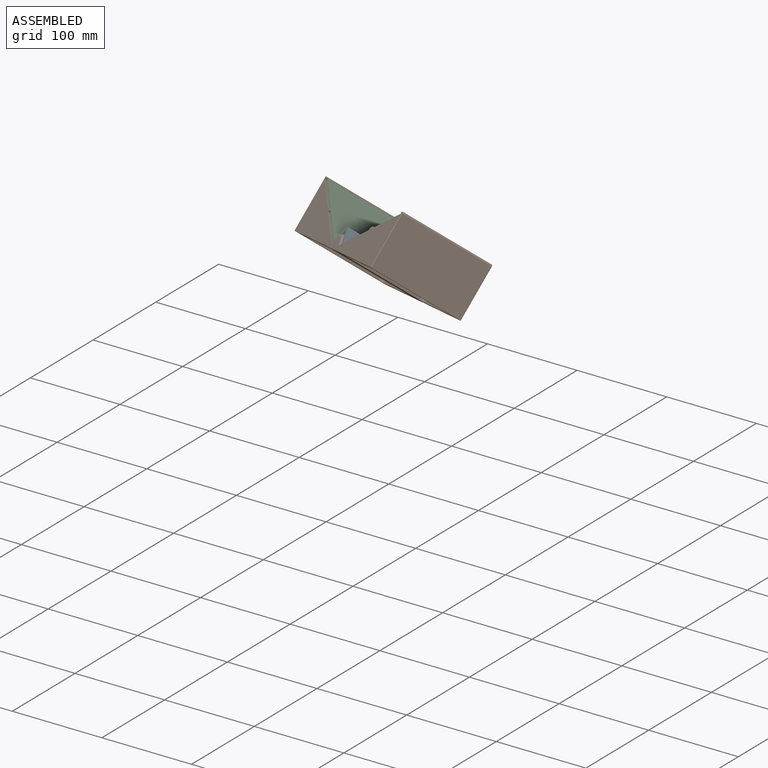
[diagram: assembled view]
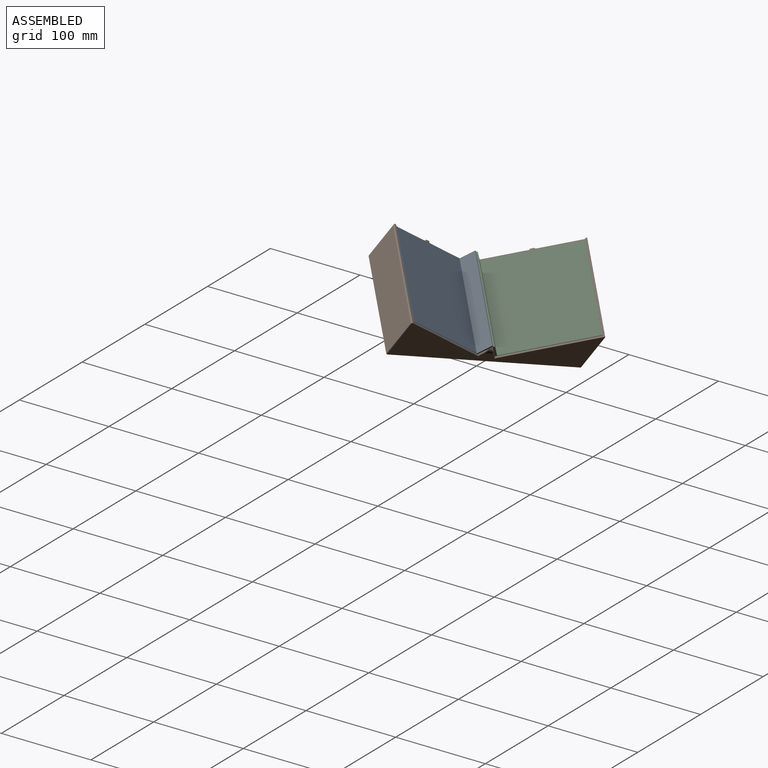
[diagram: assembled view, second angle]
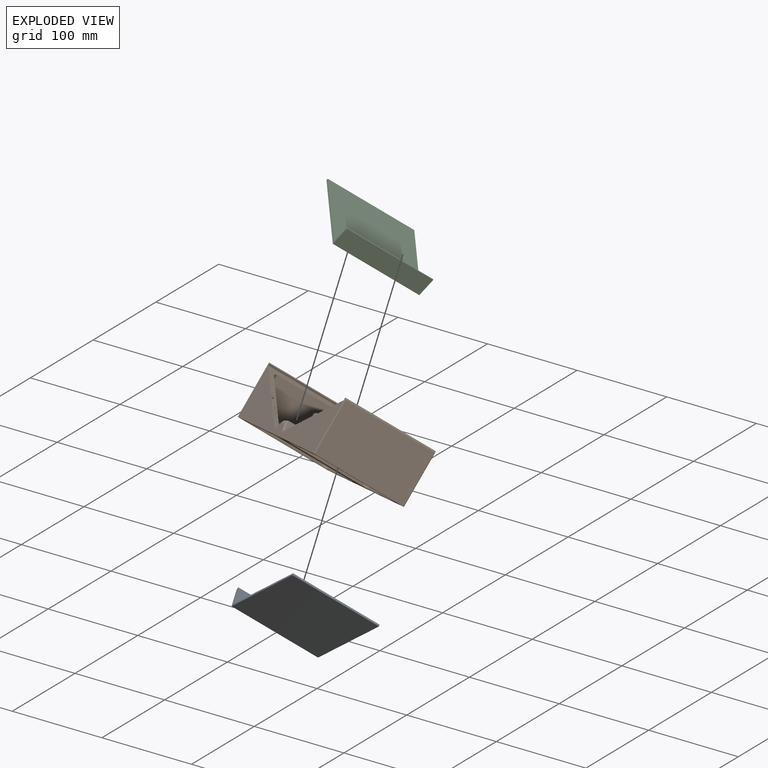
[diagram: exploded view]
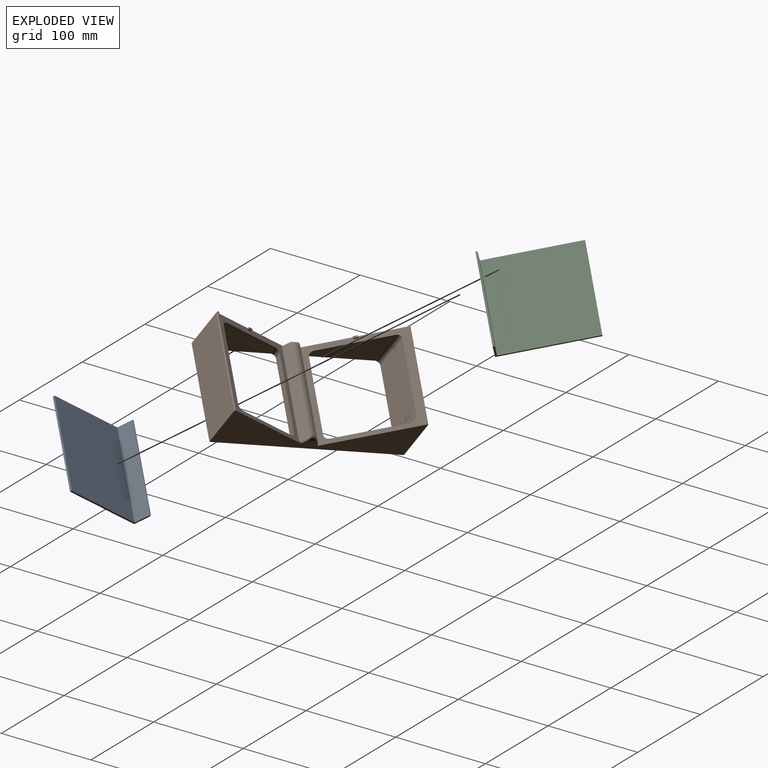
[diagram: exploded view, second angle]
ASSEMBLY  parts=3 mates=6
PART A: 10 faces, bbox 100x100x20 mm
  f0: plane 100x100mm, normal (0,0,-1), area 10000mm2, adj f1,f7,f8,f9
  f1: plane 100x2mm, normal (1,0,0), area 200mm2, adj f0,f2,f8,f9
  f2: plane 100x98mm, normal (0,0,1), area 9800mm2, adj f1,f3,f8,f9
  f3: plane 100x18mm, normal (1,0,0), area 1800mm2, adj f2,f4,f8,f9
  f4: plane 100x1mm, normal (0,0,1), area 100mm2, adj f3,f5,f8,f9
  f5: plane 100x1.5mm, normal (-1,0,0), area 150mm2, adj f4,f6,f8,f9
  f6: plane 100x1mm, normal (0,0,1), area 100mm2, adj f5,f7,f8,f9
  f7: plane 100x18.5mm, normal (-1,0,0), area 1850mm2, adj f0,f6,f8,f9
  f8: plane 100x20mm, normal (0,-1,0), area 234.5mm2, adj f0,f1,f2,f3,f4,f5,f6,f7
  f9: plane 100x20mm, normal (0,1,0), area 234.5mm2, adj f0,f1,f2,f3,f4,f5,f6,f7
PART B: 219 faces, bbox 196.8x58.7x104.3 mm
  f0: plane 102.3x89.03mm, normal (0.5,0.87,0), area 2231.9mm2, adj f3,f8,f10,f11,f13,f14,f15,f29
  f1: plane 102.3x89.03mm, normal (-0.5,0.87,0), area 2239.3mm2, adj f3,f6,f18,f19,f21,f22,f23,f25
  f2: plane 196.82x104.3mm, normal (0,-1,0), area 6649.7mm2, adj f3,f4,f5,f7,f25,f26,f27,f28
  f3: plane 194.82x58.75mm, normal (0,0,1), area 5533.6mm2, adj f0,f1,f2,f12,f16,f20,f24,f35
  f4: plane 102.3x55.65mm, normal (-1,0,0), area 5693mm2, adj f2,f9,f34,f36
  f5: plane 102.3x57.02mm, normal (1,0,0), area 5832.7mm2, adj f2,f17,f33,f35
  f6: plane 100.3x8.82mm, normal (0.87,0.5,0), area 1021.1mm2, adj f1,f18,f53,f58,f59,f61,f62
  f7: plane 194.82x58.75mm, normal (0,0,-1), area 5928.8mm2, adj f2,f12,f20,f33,f34,f55,f61,f67
  f8: plane 100.3x10.19mm, normal (-0.87,0.5,0), area 1179.3mm2, adj f0,f11,f53,f64,f65,f67,f68
  f9: plane 104.3x1.73mm, normal (-0.87,0.5,0), area 207.7mm2, adj f4,f12,f34,f36
  f10: plane 101.8x1.73mm, normal (0.87,-0.5,0), area 203.6mm2, adj f0,f11,f12,f57
  f11: plane 87.86x51.88mm, normal (0,0,1), area 200.6mm2, adj f0,f8,f10,f12
  f12: plane 104.3x90.33mm, normal (0.5,0.87,0), area 410mm2, adj f3,f7,f9,f10,f11,f57,f67
  f13: plane 4.46x3.73mm, normal (0,0,-1), area 8mm2, adj f0,f16,f49,f52
  f14: plane 1.73x1mm, normal (-0.87,0.5,0), area 2mm2, adj f0,f16,f49,f50
  f15: plane 1.73x1mm, normal (0.87,-0.5,0), area 2mm2, adj f0,f16,f51,f52
  f16: plane 4.33x2.5mm, normal (0.5,0.87,0), area 9.8mm2, adj f3,f13,f14,f15,f49,f50,f51,f52
  f17: plane 104.3x1.73mm, normal (0.87,0.5,0), area 207.7mm2, adj f5,f20,f33,f35
  f18: plane 87.86x51.88mm, normal (0,0,1), area 200.6mm2, adj f1,f6,f19,f20
  f19: plane 101.8x1.73mm, normal (-0.87,-0.5,0), area 203.6mm2, adj f1,f18,f20,f56
  f20: plane 104.3x90.33mm, normal (-0.5,0.87,0), area 410mm2, adj f3,f7,f17,f18,f19,f56,f61
  f21: plane 4.46x3.73mm, normal (0,0,-1), area 8mm2, adj f1,f24,f45,f48
  f22: plane 1.73x1mm, normal (-0.87,-0.5,0), area 2mm2, adj f1,f24,f45,f46
  f23: plane 1.73x1mm, normal (0.87,0.5,0), area 2mm2, adj f1,f24,f47,f48
  f24: plane 4.33x2.5mm, normal (-0.5,0.87,0), area 9.8mm2, adj f3,f21,f22,f23,f45,f46,f47,f48
  f25: plane 82.3x52.4mm, normal (-1,0,0), area 4312.3mm2, adj f1,f2,f37,f40
  f26: plane 65.41x49.51mm, normal (0,0,-1), area 2003.4mm2, adj f1,f2,f37,f38
  f27: plane 82.3x8.86mm, normal (1,0,0), area 729mm2, adj f1,f2,f38,f39
  f28: plane 65.41x49.51mm, normal (0,0,1), area 2003.4mm2, adj f1,f2,f39,f40
  f29: plane 65.41x48.14mm, normal (0,0,-1), area 1914.1mm2, adj f0,f2,f41,f44
  f30: plane 82.3x51.03mm, normal (1,0,0), area 4199.9mm2, adj f0,f2,f43,f44
  f31: plane 65.41x48.14mm, normal (0,0,1), area 1914.1mm2, adj f0,f2,f42,f43
  f32: plane 82.3x7.49mm, normal (-1,0,0), area 616.6mm2, adj f0,f2,f41,f42
  f33: cylinder r=1mm len=58.75mm, axis (0,1,0), area 90.5mm2, adj f2,f5,f7,f17
  f34: cylinder r=1mm len=57.38mm, axis (0,-1,0), area 88.4mm2, adj f2,f4,f7,f9
  f35: cylinder r=1mm len=58.75mm, axis (0,-1,0), area 90.5mm2, adj f2,f3,f5,f17
  f36: cylinder r=1mm len=57.38mm, axis (0,1,0), area 88.4mm2, adj f2,f3,f4,f9
  f37: cylinder r=5mm len=52.4mm, axis (0,-1,0), area 403.3mm2, adj f1,f2,f25,f26
  f38: cylinder r=5mm len=11.75mm, axis (0,1,0), area 77.8mm2, adj f1,f2,f26,f27
  f39: cylinder r=5mm len=11.75mm, axis (0,-1,0), area 77.8mm2, adj f1,f2,f27,f28
  f40: cylinder r=5mm len=52.4mm, axis (0,1,0), area 403.3mm2, adj f1,f2,f25,f28
  f41: cylinder r=5mm len=10.38mm, axis (0,1,0), area 67.1mm2, adj f0,f2,f29,f32
  f42: cylinder r=5mm len=10.38mm, axis (0,-1,0), area 67.1mm2, adj f0,f2,f31,f32
  f43: cylinder r=5mm len=51.03mm, axis (0,1,0), area 392.6mm2, adj f0,f2,f30,f31
  f44: cylinder r=5mm len=51.03mm, axis (0,-1,0), area 392.6mm2, adj f0,f2,f29,f30
  f45: cylinder r=0.5mm len=1.98mm, axis (-0.5,0.87,0), area 1.6mm2, adj f1,f21,f22,f24
  f46: cylinder r=0.5mm len=1.98mm, axis (-0.5,0.87,0), area 1.6mm2, adj f1,f3,f22,f24
  f47: cylinder r=0.5mm len=1.98mm, axis (0.5,-0.87,0), area 1.6mm2, adj f1,f3,f23,f24
  f48: cylinder r=0.5mm len=1.98mm, axis (0.5,-0.87,0), area 1.6mm2, adj f1,f21,f23,f24
  f49: cylinder r=0.5mm len=1.98mm, axis (0.5,0.87,0), area 1.6mm2, adj f0,f13,f14,f16
  f50: cylinder r=0.5mm len=1.98mm, axis (0.5,0.87,0), area 1.6mm2, adj f0,f3,f14,f16
  f51: cylinder r=0.5mm len=1.98mm, axis (-0.5,-0.87,0), area 1.6mm2, adj f0,f3,f15,f16
  f52: cylinder r=0.5mm len=1.98mm, axis (-0.5,-0.87,0), area 1.6mm2, adj f0,f13,f15,f16
  f53: cylinder r=5mm len=99.5mm, axis (0,0,-1), area 1017.5mm2, adj f6,f8,f60,f63,f66,f69
  f54: cylinder r=5mm len=6.93mm, axis (1,0,0), area 30.9mm2, adj f3,f59,f60,f65,f66
  f55: cylinder r=5mm len=6.93mm, axis (-1,0,0), area 30.9mm2, adj f7,f62,f63,f68,f69
  f56: cylinder r=0.5mm len=1.98mm, axis (-0.5,0.87,0), area 1.6mm2, adj f1,f3,f19,f20
  f57: cylinder r=0.5mm len=1.98mm, axis (0.5,0.87,0), area 1.6mm2, adj f0,f3,f10,f12
  f58: cylinder r=2mm len=8.32mm, axis (0.5,-0.87,0), area 26.6mm2, adj f1,f3,f6,f59
  f59: bspline ~2.75x2.6mm, area 6.8mm2, adj f6,f54,f58,f60
  f60: bspline ~4.49x4.49mm, area 8.1mm2, adj f53,f54,f59
  f61: cylinder r=2mm len=6.59mm, axis (-0.5,0.87,0), area 20.3mm2, adj f6,f7,f20,f62
  f62: bspline ~2.75x2.6mm, area 6.8mm2, adj f6,f55,f61,f63
  f63: bspline ~4.49x4.49mm, area 8.1mm2, adj f53,f55,f62
  f64: cylinder r=2mm len=9.69mm, axis (-0.5,-0.87,0), area 31.5mm2, adj f0,f3,f8,f65
  f65: bspline ~2.75x2.6mm, area 6.8mm2, adj f8,f54,f64,f66
  f66: bspline ~4.49x4.49mm, area 8.1mm2, adj f53,f54,f65
  f67: cylinder r=2mm len=7.95mm, axis (-0.5,-0.87,0), area 25.2mm2, adj f7,f8,f12,f68
  f68: bspline ~2.75x2.6mm, area 6.8mm2, adj f8,f55,f67,f69
  f69: bspline ~4.49x4.49mm, area 8.1mm2, adj f53,f55,f68
  f70: plane 1.83x0.69mm, normal (0.81,-0.47,0.35), area 0.4mm2, adj f0,f71,f73,f74
  f71: plane 0.28x0.28mm, normal (0,0,-1), area 0mm2, adj f0,f70,f72,f74
  f72: plane 1.83x0.69mm, normal (-0.81,0.47,-0.35), area 0.4mm2, adj f0,f71,f73,f74
  f73: plane 0.28x0.28mm, normal (0,0,1), area 0mm2, adj f0,f70,f72,f74
  f74: plane 1.83x0.77mm, normal (0.5,0.87,0), area 0.4mm2, adj f70,f71,f72,f73
  f75: plane 1.14x0.77mm, normal (0,0,1), area 0.2mm2, adj f0,f76,f94,f95
  f76: plane 0.19x0.17mm, normal (0.87,-0.5,0), area 0mm2, adj f0,f75,f77,f95
  f77: plane 0.92x0.64mm, normal (0,0,-1), area 0.2mm2, adj f0,f76,f78,f95
  f78: plane 0.17x0.1mm, normal (0.87,-0.5,0), area 0mm2, adj f0,f77,f79,f95
  f79: plane 0.45x0.39mm, normal (0.61,-0.35,0.71), area 0.1mm2, adj f0,f78,f80,f95
  f80: extruded ~0.43x0.42mm, area 0.1mm2, adj f0,f79,f81,f95
  f81: extruded ~0.34x0.22mm, area 0.1mm2, adj f0,f80,f82,f95
  f82: extruded ~0.35x0.25mm, area 0.1mm2, adj f0,f81,f83,f95
  f83: extruded ~0.45x0.38mm, area 0.1mm2, adj f0,f82,f84,f95
  f84: extruded ~0.58x0.45mm, area 0.1mm2, adj f0,f83,f85,f95
  f85: plane 0.23x0.2mm, normal (-0.68,0.39,0.61), area 0mm2, adj f0,f84,f86,f95
  f86: extruded ~0.3x0.29mm, area 0.1mm2, adj f0,f85,f87,f95
  f87: extruded ~0.29x0.28mm, area 0mm2, adj f0,f86,f88,f95
  f88: extruded ~0.31x0.3mm, area 0.1mm2, adj f0,f87,f89,f95
  f89: extruded ~0.23x0.22mm, area 0.1mm2, adj f0,f88,f90,f95
  f90: extruded ~0.19x0.19mm, area 0mm2, adj f0,f89,f91,f95
  f91: extruded ~0.23x0.19mm, area 0mm2, adj f0,f90,f92,f95
  f92: extruded ~0.35x0.32mm, area 0.1mm2, adj f0,f91,f93,f95
  f93: plane 0.52x0.48mm, normal (-0.61,0.35,-0.71), area 0.1mm2, adj f0,f92,f94,f95
  f94: plane 0.18x0.17mm, normal (-0.87,0.5,0), area 0mm2, adj f0,f75,f93,f95
  f95: plane 1.86x1.04mm, normal (0.5,0.87,0), area 0.7mm2, adj f75,f76,f77,f78,f79,f80,f81,f82
  f96: plane 0.28x0.27mm, normal (0,0,1), area 0mm2, adj f0,f97,f104,f105
  f97: plane 1.83x0.17mm, normal (0.87,-0.5,0), area 0.4mm2, adj f0,f96,f98,f105
  f98: plane 0.26x0.25mm, normal (0,0,-1), area 0mm2, adj f0,f97,f99,f105
  f99: plane 0.52x0.42mm, normal (-0.53,0.31,-0.79), area 0.1mm2, adj f0,f98,f100,f105
  f100: plane 0.23x0.2mm, normal (-0.69,0.4,0.61), area 0mm2, adj f0,f99,f101,f105
  f101: extruded ~0.36x0.32mm, area 0.1mm2, adj f0,f100,f102,f105
  f102: extruded ~0.2x0.15mm, area 0mm2, adj f0,f101,f103,f105
  f103: extruded ~0.31x0.18mm, area 0.1mm2, adj f0,f102,f104,f105
  f104: plane 1.3x0.17mm, normal (-0.87,0.5,0), area 0.3mm2, adj f0,f96,f103,f105
  f105: plane 1.83x0.57mm, normal (0.5,0.87,0), area 0.5mm2, adj f96,f97,f98,f99,f100,f101,f102,f103
  f106: plane 0.89x0.17mm, normal (-0.87,0.5,0), area 0.2mm2, adj f0,f107,f133,f134
  f107: plane 0.28x0.28mm, normal (0,0,1), area 0mm2, adj f0,f106,f108,f134
  f108: plane 0.9x0.17mm, normal (0.87,-0.5,0), area 0.2mm2, adj f0,f107,f109,f134
  f109: extruded ~0.38x0.23mm, area 0.1mm2, adj f0,f108,f110,f134
  f110: extruded ~0.4x0.35mm, area 0.1mm2, adj f0,f109,f111,f134
  f111: extruded ~0.33x0.31mm, area 0.1mm2, adj f0,f110,f112,f134
  f112: extruded ~0.26x0.25mm, area 0mm2, adj f0,f111,f113,f134
  f113: plane 0.18x0.11mm, normal (0,0,-1), area 0mm2, adj f0,f112,f114,f134
  f114: extruded ~0.46x0.38mm, area 0.1mm2, adj f0,f113,f115,f134
  f115: extruded ~0.31x0.29mm, area 0mm2, adj f0,f114,f116,f134
  f116: extruded ~0.26x0.24mm, area 0mm2, adj f0,f115,f117,f134
  f117: plane 0.18x0.11mm, normal (0,0,-1), area 0mm2, adj f0,f116,f118,f134
  f118: plane 0.19x0.19mm, normal (0.85,-0.49,-0.18), area 0mm2, adj f0,f117,f119,f134
  f119: plane 0.26x0.25mm, normal (0,0,-1), area 0mm2, adj f0,f118,f120,f134
  f120: plane 1.37x0.17mm, normal (-0.87,0.5,0), area 0.3mm2, adj f0,f119,f121,f134
  f121: plane 0.28x0.28mm, normal (0,0,1), area 0mm2, adj f0,f120,f122,f134
  f122: plane 0.72x0.17mm, normal (0.87,-0.5,0), area 0.1mm2, adj f0,f121,f123,f134
  f123: extruded ~0.38x0.22mm, area 0.1mm2, adj f0,f122,f124,f134
  f124: extruded ~0.35x0.32mm, area 0.1mm2, adj f0,f123,f125,f134
  f125: extruded ~0.29x0.28mm, area 0mm2, adj f0,f124,f126,f134
  f126: extruded ~0.25x0.21mm, area 0.1mm2, adj f0,f125,f127,f134
  f127: plane 0.89x0.17mm, normal (-0.87,0.5,0), area 0.2mm2, adj f0,f126,f128,f134
  f128: plane 0.28x0.28mm, normal (0,0,1), area 0mm2, adj f0,f127,f129,f134
  f129: plane 0.77x0.17mm, normal (0.87,-0.5,0), area 0.2mm2, adj f0,f128,f130,f134
  f130: extruded ~0.34x0.22mm, area 0.1mm2, adj f0,f129,f131,f134
  f131: extruded ~0.35x0.32mm, area 0.1mm2, adj f0,f130,f132,f134
  f132: extruded ~0.29x0.28mm, area 0mm2, adj f0,f131,f133,f134
  f133: extruded ~0.25x0.21mm, area 0.1mm2, adj f0,f106,f132,f134
  f134: plane 1.69x1.4mm, normal (0.5,0.87,0), area 1.1mm2, adj f106,f107,f108,f109,f110,f111,f112,f113
  f135: extruded ~0.36x0.33mm, area 0.1mm2, adj f136,f159,f160,f217
  f136: extruded ~0.35x0.32mm, area 0.1mm2, adj f135,f137,f160,f217
  f137: extruded ~0.39x0.22mm, area 0.1mm2, adj f136,f138,f160,f217
  f138: extruded ~0.4x0.22mm, area 0.1mm2, adj f137,f139,f160,f217
  f139: extruded ~0.34x0.31mm, area 0.1mm2, adj f138,f140,f160,f217
  f140: extruded ~0.37x0.33mm, area 0.1mm2, adj f139,f141,f160,f217
  f141: extruded ~0.41x0.22mm, area 0.1mm2, adj f140,f142,f160,f217
  f142: plane 0.17x0.1mm, normal (0.87,-0.5,0), area 0mm2, adj f141,f159,f160,f217
  f143: extruded ~0.31x0.3mm, area 0.1mm2, adj f0,f144,f158,f160
  f144: extruded ~0.46x0.38mm, area 0.1mm2, adj f0,f143,f145,f160
  f145: extruded ~0.53x0.25mm, area 0.1mm2, adj f0,f144,f146,f160
  f146: extruded ~0.52x0.25mm, area 0.1mm2, adj f0,f145,f147,f160
  f147: extruded ~0.47x0.38mm, area 0.1mm2, adj f0,f146,f148,f160
  f148: extruded ~0.31x0.3mm, area 0.1mm2, adj f0,f147,f149,f160
  f149: extruded ~0.27x0.26mm, area 0.1mm2, adj f0,f148,f150,f160
  f150: plane 0.18x0.11mm, normal (0,0,-1), area 0mm2, adj f0,f149,f151,f160
  f151: plane 0.19x0.19mm, normal (0.86,-0.49,-0.15), area 0mm2, adj f0,f150,f152,f160
  f152: plane 0.26x0.25mm, normal (0,0,-1), area 0mm2, adj f0,f151,f153,f160
  f153: plane 1.99x0.17mm, normal (-0.87,0.5,0), area 0.4mm2, adj f0,f152,f154,f160
  f154: plane 0.28x0.28mm, normal (0,0,1), area 0mm2, adj f0,f153,f155,f160
  f155: plane 0.57x0.17mm, normal (0.87,-0.5,0), area 0.1mm2, adj f0,f154,f156,f160
  f156: extruded ~0.23x0.18mm, area 0mm2, adj f0,f155,f157,f160
  f157: plane 0.18x0.11mm, normal (0,0,1), area 0mm2, adj f0,f156,f158,f160
  f158: extruded ~0.27x0.26mm, area 0mm2, adj f0,f143,f157,f160
  f159: extruded ~0.37x0.22mm, area 0.1mm2, adj f135,f142,f160,f217
  f160: plane 2.01x1.05mm, normal (0.5,0.87,0), area 0.9mm2, adj f135,f136,f137,f138,f139,f140,f141,f142
  f161: extruded ~0.4x0.23mm, area 0.1mm2, adj f162,f177,f178,f218
  f162: extruded ~0.4x0.23mm, area 0.1mm2, adj f161,f163,f178,f218
  f163: extruded ~0.37x0.33mm, area 0.1mm2, adj f162,f164,f178,f218
  f164: extruded ~0.37x0.33mm, area 0.1mm2, adj f163,f165,f178,f218
  f165: extruded ~0.4x0.23mm, area 0.1mm2, adj f164,f166,f178,f218
  f166: extruded ~0.4x0.23mm, area 0.1mm2, adj f165,f167,f178,f218
  f167: extruded ~0.37x0.33mm, area 0.1mm2, adj f166,f177,f178,f218
  f168: extruded ~0.52x0.26mm, area 0.1mm2, adj f0,f169,f176,f178
  f169: extruded ~0.52x0.26mm, area 0.1mm2, adj f0,f168,f170,f178
  f170: extruded ~0.5x0.4mm, area 0.1mm2, adj f0,f169,f171,f178
  f171: extruded ~0.5x0.41mm, area 0.1mm2, adj f0,f170,f172,f178
  f172: extruded ~0.52x0.26mm, area 0.1mm2, adj f0,f171,f173,f178
  f173: extruded ~0.38x0.21mm, area 0.1mm2, adj f0,f172,f174,f178
  f174: extruded ~0.29x0.28mm, area 0.1mm2, adj f0,f173,f175,f178
  f175: extruded ~0.38x0.34mm, area 0.1mm2, adj f0,f174,f176,f178
  f176: extruded ~0.5x0.41mm, area 0.1mm2, adj f0,f168,f175,f178
  f177: extruded ~0.37x0.33mm, area 0.1mm2, adj f161,f167,f178,f218
  f178: plane 1.42x1.09mm, normal (0.5,0.87,0), area 0.7mm2, adj f161,f162,f163,f164,f165,f166,f167,f168
  f179: plane 0.89x0.17mm, normal (-0.87,0.5,0), area 0.2mm2, adj f0,f180,f206,f207
  f180: plane 0.28x0.28mm, normal (0,0,1), area 0mm2, adj f0,f179,f181,f207
  f181: plane 0.9x0.17mm, normal (0.87,-0.5,0), area 0.2mm2, adj f0,f180,f182,f207
  f182: extruded ~0.38x0.23mm, area 0.1mm2, adj f0,f181,f183,f207
  f183: extruded ~0.4x0.35mm, area 0.1mm2, adj f0,f182,f184,f207
  f184: extruded ~0.33x0.31mm, area 0.1mm2, adj f0,f183,f185,f207
  f185: extruded ~0.26x0.25mm, area 0mm2, adj f0,f184,f186,f207
  f186: plane 0.18x0.11mm, normal (0,0,-1), area 0mm2, adj f0,f185,f187,f207
  f187: extruded ~0.46x0.38mm, area 0.1mm2, adj f0,f186,f188,f207
  f188: extruded ~0.31x0.29mm, area 0mm2, adj f0,f187,f189,f207
  f189: extruded ~0.26x0.24mm, area 0mm2, adj f0,f188,f190,f207
  f190: plane 0.18x0.11mm, normal (0,0,-1), area 0mm2, adj f0,f189,f191,f207
  f191: plane 0.19x0.19mm, normal (0.85,-0.49,-0.18), area 0mm2, adj f0,f190,f192,f207
  f192: plane 0.26x0.25mm, normal (0,0,-1), area 0mm2, adj f0,f191,f193,f207
  f193: plane 1.37x0.17mm, normal (-0.87,0.5,0), area 0.3mm2, adj f0,f192,f194,f207
  f194: plane 0.28x0.28mm, normal (0,0,1), area 0mm2, adj f0,f193,f195,f207
  f195: plane 0.72x0.17mm, normal (0.87,-0.5,0), area 0.1mm2, adj f0,f194,f196,f207
  f196: extruded ~0.38x0.22mm, area 0.1mm2, adj f0,f195,f197,f207
  f197: extruded ~0.35x0.32mm, area 0.1mm2, adj f0,f196,f198,f207
  f198: extruded ~0.29x0.28mm, area 0mm2, adj f0,f197,f199,f207
  f199: extruded ~0.25x0.21mm, area 0.1mm2, adj f0,f198,f200,f207
  f200: plane 0.89x0.17mm, normal (-0.87,0.5,0), area 0.2mm2, adj f0,f199,f201,f207
  f201: plane 0.28x0.28mm, normal (0,0,1), area 0mm2, adj f0,f200,f202,f207
  f202: plane 0.77x0.17mm, normal (0.87,-0.5,0), area 0.2mm2, adj f0,f201,f203,f207
  f203: extruded ~0.34x0.22mm, area 0.1mm2, adj f0,f202,f204,f207
  f204: extruded ~0.35x0.32mm, area 0.1mm2, adj f0,f203,f205,f207
  f205: extruded ~0.29x0.28mm, area 0mm2, adj f0,f204,f206,f207
  f206: extruded ~0.25x0.21mm, area 0.1mm2, adj f0,f179,f205,f207
  f207: plane 1.69x1.4mm, normal (0.5,0.87,0), area 1.1mm2, adj f179,f180,f181,f182,f183,f184,f185,f186
  f208: plane 0.28x0.28mm, normal (0,0,1), area 0mm2, adj f0,f209,f215,f216
  f209: plane 1.64x0.17mm, normal (0.87,-0.5,0), area 0.3mm2, adj f0,f208,f210,f216
  f210: plane 0.6x0.46mm, normal (0,0,1), area 0.1mm2, adj f0,f209,f211,f216
  f211: plane 0.19x0.17mm, normal (0.87,-0.5,0), area 0mm2, adj f0,f210,f212,f216
  f212: plane 1.29x0.86mm, normal (0,0,-1), area 0.3mm2, adj f0,f211,f213,f216
  f213: plane 0.19x0.17mm, normal (-0.87,0.5,0), area 0mm2, adj f0,f212,f214,f216
  f214: plane 0.6x0.46mm, normal (0,0,1), area 0.1mm2, adj f0,f213,f215,f216
  f215: plane 1.64x0.17mm, normal (-0.87,0.5,0), area 0.3mm2, adj f0,f208,f214,f216
  f216: plane 1.83x1.19mm, normal (0.5,0.87,0), area 0.6mm2, adj f208,f209,f210,f211,f212,f213,f214,f215
  f217: plane 1.07x0.68mm, normal (0.5,0.87,0), area 0.7mm2, adj f135,f136,f137,f138,f139,f140,f141,f142
  f218: plane 1.07x0.72mm, normal (0.5,0.87,0), area 0.7mm2, adj f161,f162,f163,f164,f165,f166,f167,f177
PART C: 10 faces, bbox 100x100x21 mm
  f0: plane 100x2mm, normal (-1,0,0), area 200mm2, adj f1,f7,f8,f9
  f1: plane 100x100mm, normal (0,0,-1), area 10000mm2, adj f0,f2,f8,f9
  f2: plane 100x21mm, normal (1,0,0), area 2100mm2, adj f1,f3,f8,f9
  f3: plane 100x1mm, normal (0,0,1), area 100mm2, adj f2,f4,f8,f9
  f4: plane 100x1mm, normal (-1,0,0), area 100mm2, adj f3,f5,f8,f9
  f5: plane 100x1mm, normal (0,0,1), area 100mm2, adj f4,f6,f8,f9
  f6: plane 100x18mm, normal (-1,0,0), area 1800mm2, adj f5,f7,f8,f9
  f7: plane 100x98mm, normal (0,0,1), area 9800mm2, adj f0,f6,f8,f9
  f8: plane 100x21mm, normal (0,-1,0), area 237mm2, adj f0,f1,f2,f3,f4,f5,f6,f7
  f9: plane 100x21mm, normal (0,1,0), area 237mm2, adj f0,f1,f2,f3,f4,f5,f6,f7
PLACE A rot(axis=(-0.78,-0.47,-0.41),62.4deg) t=(71.44,-40.06,105.27)mm
PLACE B rot(axis=(0.78,-0.46,-0.42),59.7deg) t=(63.71,-37.01,97.09)mm
PLACE C rot(axis=(-0.49,0.43,-0.76),60.7deg) t=(55.29,-30.33,99.63)mm
MATE planar C.f8 <-> B.f13  axis (-0.56,-0.58,0.59) through (-24.83,-55.31,168.59)mm
MATE planar C.f2 <-> B.f8  axis (0.61,-0.77,-0.18) through (33.33,-56.75,137.44)mm
MATE planar A.f0 <-> B.f1  axis (0.25,-0.8,-0.55) through (83.2,-77.27,164.23)mm
MATE planar A.f7 <-> B.f6  axis (-0.79,0.16,-0.59) through (41.29,-61.83,139.94)mm
MATE planar A.f8 <-> B.f21  axis (-0.56,-0.58,0.59) through (49.02,-103.33,190.89)mm
MATE planar C.f1 <-> B.f0  axis (-0.56,-0.26,-0.79) through (-3.1,-20.95,138.4)mm
